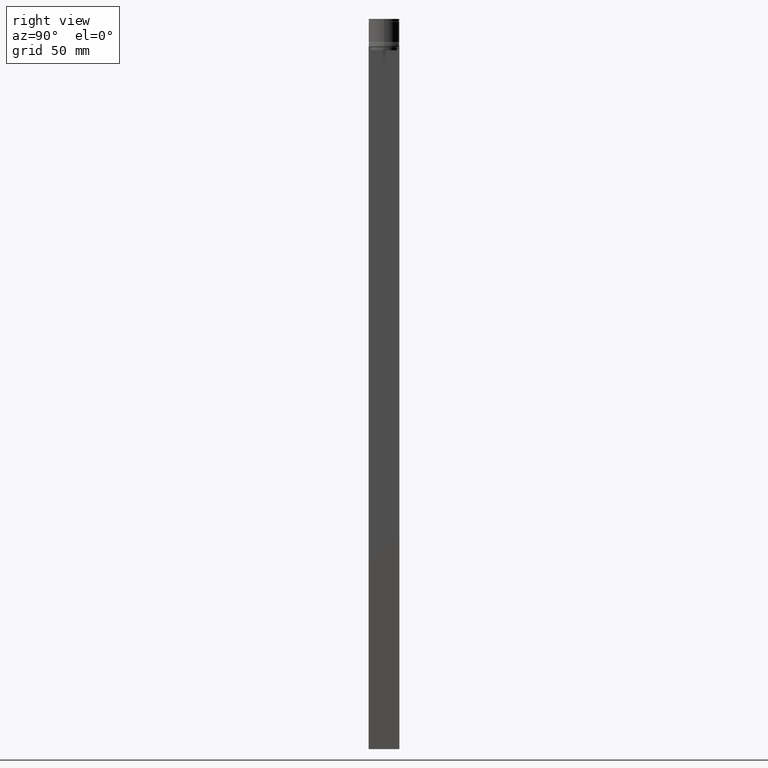
[diagram: clean part render]
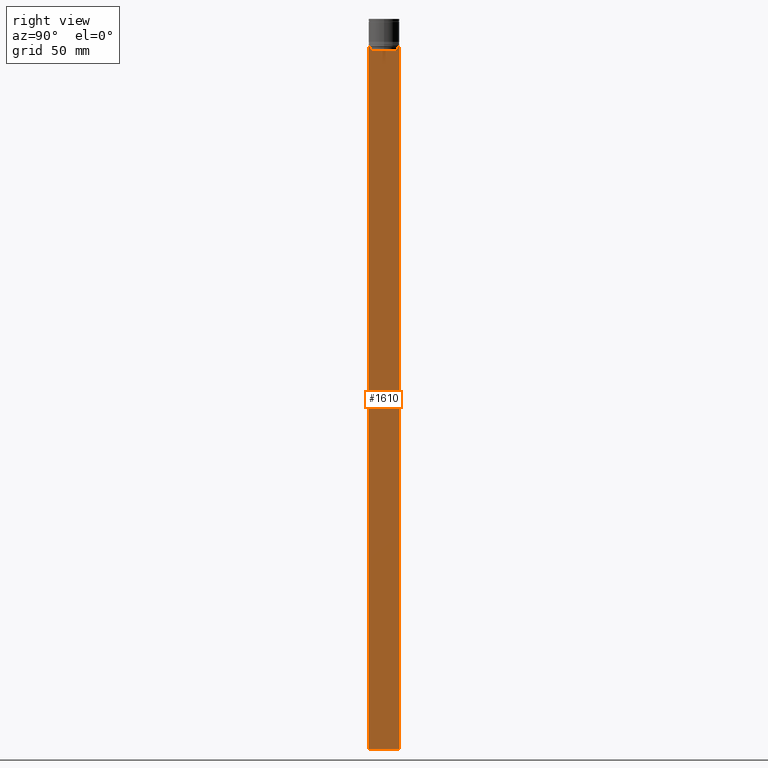
[diagram: same view with one face highlighted and labeled with its STEP entity id]
A machine part, right view. The second image highlights one B-rep face of the part: STEP entity #1610.
In plain terms, the highlighted planar face has unit normal (-1, 0, 0).
Its self-contained STEP definition (entity closure, byte-faithful):
#15 = CARTESIAN_POINT ( 'NONE',  ( 0.5000000000000000000, -11.22219891450653151, -22.66667035398018726 ) ) ;
#18 = DIRECTION ( 'NONE',  ( 0.000000000000000000, 0.000000000000000000, -1.000000000000000000 ) ) ;
#35 = CARTESIAN_POINT ( 'NONE',  ( 0.5000000000000000000, 10.88852607105297032, 0.000000000000000000 ) ) ;
#40 = CARTESIAN_POINT ( 'NONE',  ( 0.5000000000000000000, -10.88852607105296855, -25.50000000000000000 ) ) ;
#47 = EDGE_LOOP ( 'NONE', ( #801, #1841, #1292, #1749, #636, #453, #1634, #819, #64, #415, #1386, #1233 ) ) ;
#51 = CARTESIAN_POINT ( 'NONE',  ( 0.5000000000000000000, -12.49999999999999289, -22.50000000000000000 ) ) ;
#55 = VECTOR ( 'NONE', #1989, 1000.000000000000000 ) ;
#60 = VECTOR ( 'NONE', #490, 1000.000000000000000 ) ;
#64 = ORIENTED_EDGE ( 'NONE', *, *, #1126, .T. ) ;
#69 = VERTEX_POINT ( 'NONE', #656 ) ;
#89 = CARTESIAN_POINT ( 'NONE',  ( 0.5000000000000000000, -12.49999999999999289, -594.4999999999998863 ) ) ;
#100 = LINE ( 'NONE', #89, #703 ) ;
#112 = EDGE_CURVE ( 'NONE', #1258, #1138, #1613, .T. ) ;
#153 = DIRECTION ( 'NONE',  ( -1.000000000000000000, 0.000000000000000000, 0.000000000000000000 ) ) ;
#172 = CARTESIAN_POINT ( 'NONE',  ( 0.5000000000000000000, 10.88852607105296855, -25.50000000000000000 ) ) ;
#184 = LINE ( 'NONE', #35, #1540 ) ;
#202 = AXIS2_PLACEMENT_3D ( 'NONE', #1598, #153, #1277 ) ;
#210 = CARTESIAN_POINT ( 'NONE',  ( 0.5000000000000000000, -12.49999999999999289, 2.519992006393609874 ) ) ;
#216 = EDGE_CURVE ( 'NONE', #1985, #1638, #597, .T. ) ;
#220 = CARTESIAN_POINT ( 'NONE',  ( 0.5000000000000000000, -10.88852607105297032, -22.99999999999999645 ) ) ;
#233 = LINE ( 'NONE', #51, #1469 ) ;
#328 = CARTESIAN_POINT ( 'NONE',  ( 0.5000000000000000000, 12.38991525394746596, -22.50000000000000000 ) ) ;
#397 = VERTEX_POINT ( 'NONE', #1339 ) ;
#415 = ORIENTED_EDGE ( 'NONE', *, *, #1355, .T. ) ;
#453 = ORIENTED_EDGE ( 'NONE', *, *, #799, .T. ) ;
#490 = DIRECTION ( 'NONE',  ( 0.000000000000000000, -1.000000000000000000, 0.000000000000000000 ) ) ;
#537 = CARTESIAN_POINT ( 'NONE',  ( 0.5000000000000000000, 12.50000000000000711, -22.50000000000000000 ) ) ;
#564 = LINE ( 'NONE', #1198, #1307 ) ;
#582 = DIRECTION ( 'NONE',  ( -0.000000000000000000, -0.000000000000000000, 1.000000000000000000 ) ) ;
#584 = CARTESIAN_POINT ( 'NONE',  ( 0.5000000000000000000, 11.38902980942626897, -22.50000000000000000 ) ) ;
#597 = LINE ( 'NONE', #956, #1844 ) ;
#636 = ORIENTED_EDGE ( 'NONE', *, *, #1768, .T. ) ;
#651 = CARTESIAN_POINT ( 'NONE',  ( 0.5000000000000000000, 11.05536450345590715, -22.83333719074559554 ) ) ;
#656 = CARTESIAN_POINT ( 'NONE',  ( 0.5000000000000000000, -11.38902980942626897, -22.50000000000000000 ) ) ;
#703 = VECTOR ( 'NONE', #2031, 1000.000000000000000 ) ;
#718 = CARTESIAN_POINT ( 'NONE',  ( 0.5000000000000000000, 11.22219891375843126, -22.66667035472756808 ) ) ;
#725 = VECTOR ( 'NONE', #814, 1000.000000000000000 ) ;
#770 = VECTOR ( 'NONE', #582, 1000.000000000000000 ) ;
#799 = EDGE_CURVE ( 'NONE', #1174, #69, #1465, .T. ) ;
#801 = ORIENTED_EDGE ( 'NONE', *, *, #1433, .T. ) ;
#814 = DIRECTION ( 'NONE',  ( 0.000000000000000000, -1.000000000000000000, 0.000000000000000000 ) ) ;
#819 = ORIENTED_EDGE ( 'NONE', *, *, #216, .T. ) ;
#820 = CARTESIAN_POINT ( 'NONE',  ( 0.5000000000000000000, -11.05536450423839412, -22.83333718996392747 ) ) ;
#851 = CARTESIAN_POINT ( 'NONE',  ( 0.5000000000000000000, -12.49999999999999289, -22.50000000000000000 ) ) ;
#856 = EDGE_CURVE ( 'NONE', #1707, #1516, #233, .T. ) ;
#864 = EDGE_CURVE ( 'NONE', #1424, #1459, #1693, .T. ) ;
#892 = CARTESIAN_POINT ( 'NONE',  ( 0.5000000000000000000, 10.88852607105297032, -22.99999999999999645 ) ) ;
#936 = CARTESIAN_POINT ( 'NONE',  ( 0.5000000000000000000, -12.49999999999999289, -22.50000000000000000 ) ) ;
#956 = CARTESIAN_POINT ( 'NONE',  ( 0.5000000000000000000, -12.49999999999999289, -22.50000000000000000 ) ) ;
#1124 = CARTESIAN_POINT ( 'NONE',  ( 0.5000000000000000000, 10.88852607105297032, -22.99999999999999645 ) ) ;
#1126 = EDGE_CURVE ( 'NONE', #1638, #397, #1685, .T. ) ;
#1138 = VERTEX_POINT ( 'NONE', #40 ) ;
#1174 = VERTEX_POINT ( 'NONE', #220 ) ;
#1187 = CARTESIAN_POINT ( 'NONE',  ( 0.5000000000000000000, -12.49999999999999289, -22.50000000000000000 ) ) ;
#1188 = CARTESIAN_POINT ( 'NONE',  ( 0.5000000000000000000, 11.38902980942626897, -22.50000000000000000 ) ) ;
#1198 = CARTESIAN_POINT ( 'NONE',  ( 0.5000000000000000000, 12.50000000000000711, 2.519992006393609874 ) ) ;
#1232 = VECTOR ( 'NONE', #1530, 1000.000000000000000 ) ;
#1233 = ORIENTED_EDGE ( 'NONE', *, *, #856, .T. ) ;
#1245 = EDGE_CURVE ( 'NONE', #1459, #1258, #184, .T. ) ;
#1258 = VERTEX_POINT ( 'NONE', #172 ) ;
#1277 = DIRECTION ( 'NONE',  ( 0.000000000000000000, 0.000000000000000000, 1.000000000000000000 ) ) ;
#1285 = CARTESIAN_POINT ( 'NONE',  ( 0.5000000000000000000, -11.38902980942626897, -22.50000000000000000 ) ) ;
#1292 = ORIENTED_EDGE ( 'NONE', *, *, #1245, .T. ) ;
#1307 = VECTOR ( 'NONE', #1857, 1000.000000000000000 ) ;
#1339 = CARTESIAN_POINT ( 'NONE',  ( 0.5000000000000000000, -12.49999999999999289, -594.4999999999998863 ) ) ;
#1355 = EDGE_CURVE ( 'NONE', #397, #1860, #100, .T. ) ;
#1386 = ORIENTED_EDGE ( 'NONE', *, *, #1892, .F. ) ;
#1417 = LINE ( 'NONE', #936, #60 ) ;
#1423 = DIRECTION ( 'NONE',  ( 0.000000000000000000, -1.000000000000000000, 0.000000000000000000 ) ) ;
#1424 = VERTEX_POINT ( 'NONE', #584 ) ;
#1433 = EDGE_CURVE ( 'NONE', #1516, #1424, #2043, .T. ) ;
#1459 = VERTEX_POINT ( 'NONE', #892 ) ;
#1465 = B_SPLINE_CURVE_WITH_KNOTS ( 'NONE', 3,
 ( #1626, #820, #15, #1285 ),
 .UNSPECIFIED., .F., .F.,
 ( 4, 4 ),
 ( 0.05041323384703231408, 0.05112713601261610619 ),
 .UNSPECIFIED. ) ;
#1469 = VECTOR ( 'NONE', #1547, 1000.000000000000000 ) ;
#1516 = VERTEX_POINT ( 'NONE', #328 ) ;
#1523 = LINE ( 'NONE', #1724, #770 ) ;
#1530 = DIRECTION ( 'NONE',  ( 0.000000000000000000, -1.000000000000000000, 0.000000000000000000 ) ) ;
#1540 = VECTOR ( 'NONE', #18, 1000.000000000000000 ) ;
#1547 = DIRECTION ( 'NONE',  ( 0.000000000000000000, -1.000000000000000000, 0.000000000000000000 ) ) ;
#1598 = CARTESIAN_POINT ( 'NONE',  ( 0.5000000000000000000, -12.49999999999999289, 2.519992006393609874 ) ) ;
#1610 = ADVANCED_FACE ( 'NONE', ( #1751 ), #1779, .F. ) ;
#1613 = LINE ( 'NONE', #1934, #725 ) ;
#1626 = CARTESIAN_POINT ( 'NONE',  ( 0.5000000000000000000, -10.88852607105297032, -22.99999999999999645 ) ) ;
#1634 = ORIENTED_EDGE ( 'NONE', *, *, #1925, .T. ) ;
#1638 = VERTEX_POINT ( 'NONE', #851 ) ;
#1685 = LINE ( 'NONE', #210, #55 ) ;
#1693 = B_SPLINE_CURVE_WITH_KNOTS ( 'NONE', 3,
 ( #1188, #718, #651, #1124 ),
 .UNSPECIFIED., .F., .F.,
 ( 4, 4 ),
 ( 0.01935560801904635808, 0.02006307108468587813 ),
 .UNSPECIFIED. ) ;
#1707 = VERTEX_POINT ( 'NONE', #537 ) ;
#1724 = CARTESIAN_POINT ( 'NONE',  ( 0.5000000000000000000, -10.88852607105297032, 0.000000000000000000 ) ) ;
#1749 = ORIENTED_EDGE ( 'NONE', *, *, #112, .T. ) ;
#1751 = FACE_OUTER_BOUND ( 'NONE', #47, .T. ) ;
#1768 = EDGE_CURVE ( 'NONE', #1138, #1174, #1523, .T. ) ;
#1775 = CARTESIAN_POINT ( 'NONE',  ( 0.5000000000000000000, -12.38991525394746596, -22.50000000000000000 ) ) ;
#1779 = PLANE ( 'NONE',  #202 ) ;
#1841 = ORIENTED_EDGE ( 'NONE', *, *, #864, .T. ) ;
#1842 = CARTESIAN_POINT ( 'NONE',  ( 0.5000000000000000000, 12.50000000000000711, -594.4999999999998863 ) ) ;
#1844 = VECTOR ( 'NONE', #1423, 1000.000000000000000 ) ;
#1857 = DIRECTION ( 'NONE',  ( 0.000000000000000000, 0.000000000000000000, -1.000000000000000000 ) ) ;
#1860 = VERTEX_POINT ( 'NONE', #1842 ) ;
#1892 = EDGE_CURVE ( 'NONE', #1707, #1860, #564, .T. ) ;
#1925 = EDGE_CURVE ( 'NONE', #69, #1985, #1417, .T. ) ;
#1934 = CARTESIAN_POINT ( 'NONE',  ( 0.5000000000000000000, 10.90000000000000924, -25.50000000000000000 ) ) ;
#1985 = VERTEX_POINT ( 'NONE', #1775 ) ;
#1989 = DIRECTION ( 'NONE',  ( 0.000000000000000000, 0.000000000000000000, -1.000000000000000000 ) ) ;
#2031 = DIRECTION ( 'NONE',  ( 0.000000000000000000, 1.000000000000000000, 0.000000000000000000 ) ) ;
#2043 = LINE ( 'NONE', #1187, #1232 ) ;